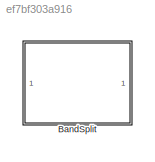
MODEL slx_ef7bf303a916
KIND library
CONFIG AbsTol = auto
CONFIG EnableMultiTasking = off
CONFIG FixedStep = auto
CONFIG MaxStep = auto
CONFIG MinStep = auto
CONFIG RelTol = 1e-3
CONFIG SampleTimeConstraint = Unconstrained
CONFIG SolverName = VariableStepAuto
CONFIG StartTime = 0.0
CONFIG StopTime = 10.0
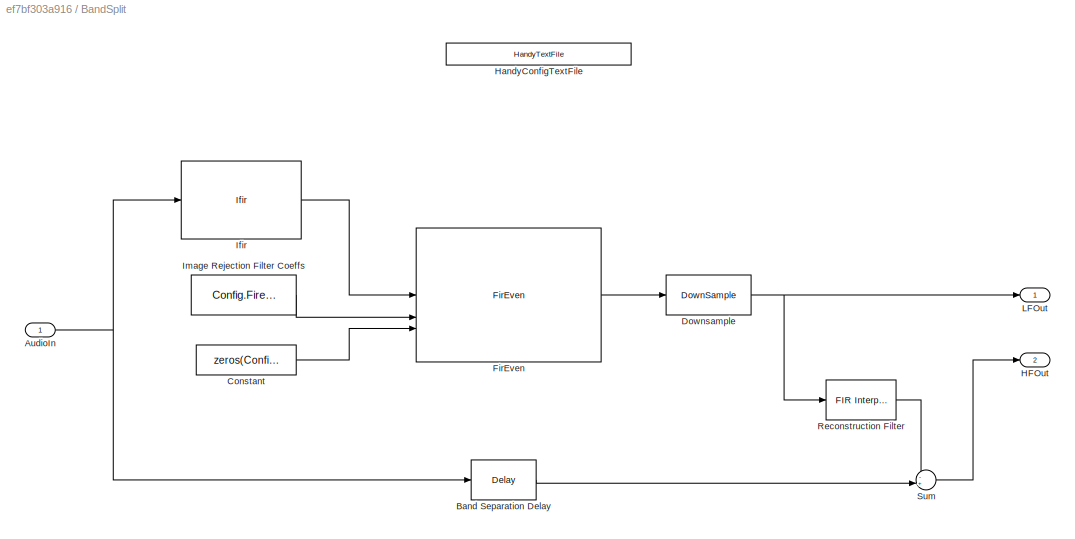
BLOCK [SubSystem] BandSplit
BLOCK [Inport] BandSplit/AudioIn
BLOCK [Delay] BandSplit/Band Separation Delay
  DelayLength = Config.BandSeparationDelay
  InputPortMap = u0
  InputProcessing = Columns as channels (frame based)
BLOCK [Constant] BandSplit/Constant
  OutDataTypeStr = uint32
  Value = zeros(Config.ChannelCount, 1)
BLOCK [DownSample] BandSplit/Downsample
  N = Config.DecimationFactor
BLOCK [Reference] BandSplit/FirEven  REF=FirEven/FirEven
  SourceBlock = FirEven/FirEven
  SourceProductName = Bose Blocklib
BLOCK [Outport] BandSplit/HFOut
  Port = 2
  VectorParamsAs1DForOutWhenUnconnected = off
BLOCK [Reference] BandSplit/HandyConfigTextFile  REF=HandyTextFile/HandyTextFile
  SourceBlock = HandyTextFile/HandyTextFile
  SourceProductName = Bose Talaria
  SourceType = Talaria Handy Text File
BLOCK [Reference] BandSplit/Ifir  REF=Ifir/Ifir
  SourceBlock = Ifir/Ifir
  SourceType = Interpolated FIR
BLOCK [Constant] BandSplit/Image Rejection Filter Coeffs
  Value = Config.Fireven
BLOCK [Outport] BandSplit/LFOut
  VectorParamsAs1DForOutWhenUnconnected = off
BLOCK [Reference] BandSplit/Reconstruction Filter  REF=dspmlti4/FIR
Interpolation
  SourceBlock = dspmlti4/FIR\nInterpolation
  SourceType = FIR Interpolation
  UserDataPersistent = on
BLOCK [Sum] BandSplit/Sum
  Inputs = -+|
NET BandSplit/AudioIn:1 -> BandSplit/Band Separation Delay:1, BandSplit/Ifir:1
LINE BandSplit/Band Separation Delay:1 -> BandSplit/Sum:2
LINE BandSplit/Constant:1 -> BandSplit/FirEven:3
NET BandSplit/Downsample:1 -> BandSplit/LFOut:1, BandSplit/Reconstruction Filter:1
LINE BandSplit/FirEven:1 -> BandSplit/Downsample:1
LINE BandSplit/Ifir:1 -> BandSplit/FirEven:1
LINE BandSplit/Image Rejection Filter Coeffs:1 -> BandSplit/FirEven:2
LINE BandSplit/Reconstruction Filter:1 -> BandSplit/Sum:1
LINE BandSplit/Sum:1 -> BandSplit/HFOut:1
note: NET lines group one-source signal fan-out (src -> all destinations, sorted); 1:1 wires keep LINE
